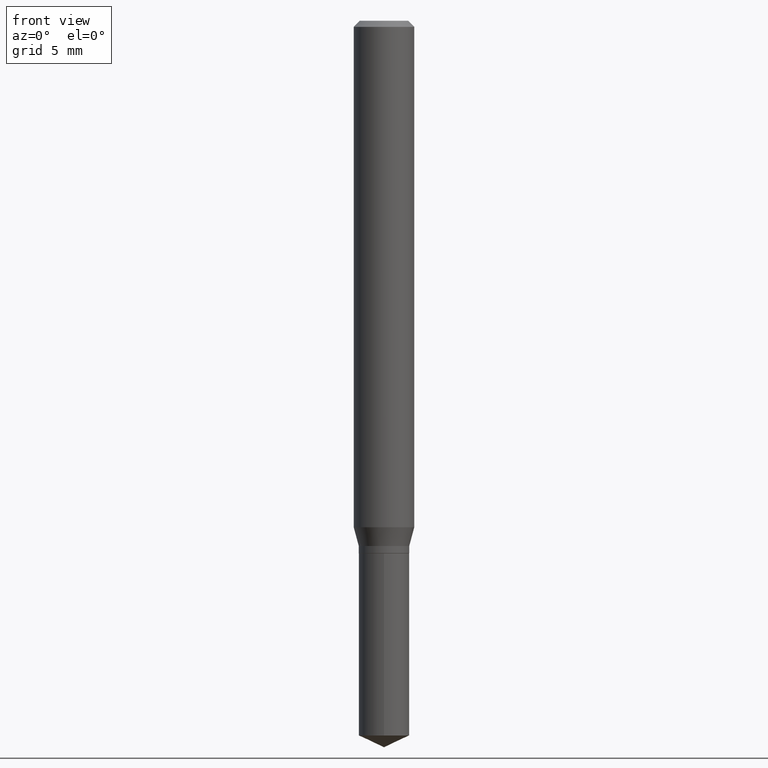
[diagram: clean part render]
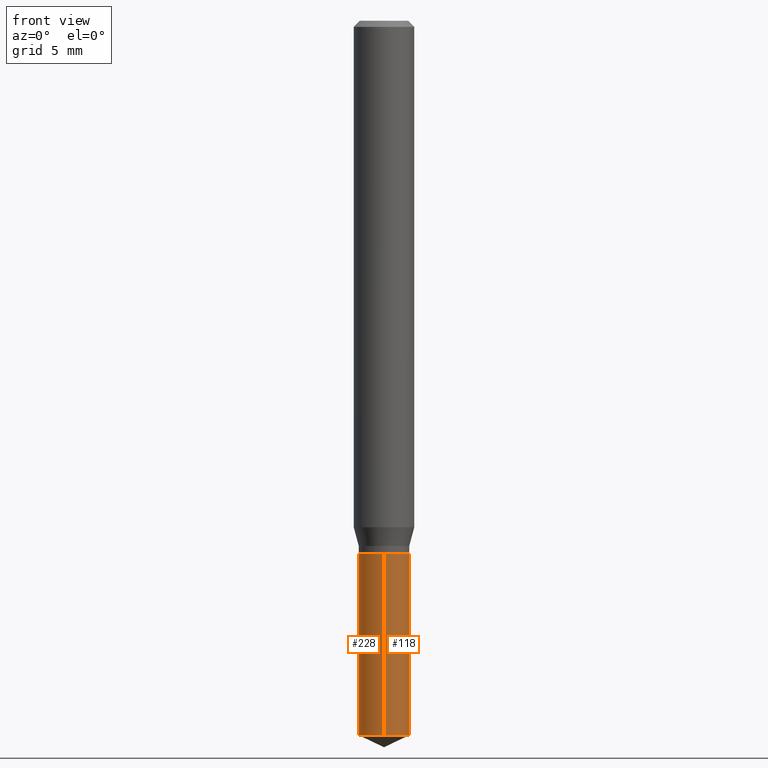
[diagram: same view with one multi-face feature highlighted, each face labeled with its STEP entity id]
A machine part, front view. The highlighted faces form ONE feature: a constant-radius fillet chain: 2 tangent blend faces with common blend radius 1.3246 mm. The faces share edges in the B-rep.
Their STEP definitions:
[1] entity #118 (Cylinder):
#44 = CARTESIAN_POINT ( 'NONE',  ( -3.641615036413025703E-16, -0.05215000000000513669, -1.475682055627216993 ) ) ;
#48 = AXIS2_PLACEMENT_3D ( 'NONE', #150, #476, #297 ) ;
#65 = FACE_OUTER_BOUND ( 'NONE', #429, .T. ) ;
#75 = DIRECTION ( 'NONE',  ( -6.982962677686266711E-15, -1.000000000000000000, 5.238442940871069917E-15 ) ) ;
#77 = CARTESIAN_POINT ( 'NONE',  ( 3.608708469328962837E-29, -5.152353543440113099E-15, -1.475682055627217215 ) ) ;
#86 = CARTESIAN_POINT ( 'NONE',  ( 3.705480366989283509E-16, 0.05214999999999615776, -1.100000000000000089 ) ) ;
#98 = VECTOR ( 'NONE', #408, 39.37007874015748143 ) ;
#116 = CARTESIAN_POINT ( 'NONE',  ( 2.690015686803650369E-29, -3.840629472727460101E-15, -1.100000000000000089 ) ) ;
#117 = DIRECTION ( 'NONE',  ( -2.445399690415121530E-29, 3.491580316559632610E-15, 1.000000000000000000 ) ) ;
#118 = ADVANCED_FACE ( 'NONE', ( #65 ), #441, .T. ) ;
#120 = CIRCLE ( 'NONE', #308, 0.05215000000000000191 ) ;
#123 = EDGE_CURVE ( 'NONE', #422, #307, #179, .T. ) ;
#139 = CARTESIAN_POINT ( 'NONE',  ( 3.705480366989190325E-16, 0.05214999999999615776, -1.100000000000000089 ) ) ;
#150 = CARTESIAN_POINT ( 'NONE',  ( 2.690015686803650369E-29, -3.840629472727460101E-15, -1.100000000000000089 ) ) ;
#156 = VECTOR ( 'NONE', #234, 39.37007874015748143 ) ;
#160 = DIRECTION ( 'NONE',  ( -2.445399690415121530E-29, 3.491580316559632610E-15, 1.000000000000000000 ) ) ;
#179 = LINE ( 'NONE', #139, #98 ) ;
#192 = DIRECTION ( 'NONE',  ( -6.982962677686266711E-15, -1.000000000000000000, 2.619221470435534958E-15 ) ) ;
#207 = EDGE_CURVE ( 'NONE', #299, #307, #120, .T. ) ;
#227 = CARTESIAN_POINT ( 'NONE',  ( -3.641615036413119380E-16, -0.05215000000000383912, -1.099999999999999867 ) ) ;
#232 = EDGE_CURVE ( 'NONE', #249, #422, #256, .T. ) ;
#234 = DIRECTION ( 'NONE',  ( -2.445399690415121810E-29, 3.491580316559632610E-15, 1.000000000000000000 ) ) ;
#249 = VERTEX_POINT ( 'NONE', #44 ) ;
#256 = CIRCLE ( 'NONE', #412, 0.05215000000000000191 ) ;
#265 = LINE ( 'NONE', #227, #156 ) ;
#286 = ORIENTED_EDGE ( 'NONE', *, *, #207, .F. ) ;
#297 = DIRECTION ( 'NONE',  ( -6.982962677686266711E-15, -1.000000000000000000, 2.619221470435534958E-15 ) ) ;
#299 = VERTEX_POINT ( 'NONE', #381 ) ;
#307 = VERTEX_POINT ( 'NONE', #86 ) ;
#308 = AXIS2_PLACEMENT_3D ( 'NONE', #116, #117, #192 ) ;
#354 = EDGE_CURVE ( 'NONE', #249, #299, #265, .T. ) ;
#355 = CARTESIAN_POINT ( 'NONE',  ( 3.705480366989282030E-16, 0.05214999999999482549, -1.475682055627217437 ) ) ;
#380 = ORIENTED_EDGE ( 'NONE', *, *, #232, .T. ) ;
#381 = CARTESIAN_POINT ( 'NONE',  ( -3.641615036413119380E-16, -0.05215000000000383912, -1.099999999999999867 ) ) ;
#408 = DIRECTION ( 'NONE',  ( -2.445399690415121810E-29, 3.491580316559632610E-15, 1.000000000000000000 ) ) ;
#412 = AXIS2_PLACEMENT_3D ( 'NONE', #77, #160, #75 ) ;
#422 = VERTEX_POINT ( 'NONE', #355 ) ;
#429 = EDGE_LOOP ( 'NONE', ( #380, #449, #286, #462 ) ) ;
#441 = CYLINDRICAL_SURFACE ( 'NONE', #48, 0.05215000000000000191 ) ;
#449 = ORIENTED_EDGE ( 'NONE', *, *, #123, .T. ) ;
#462 = ORIENTED_EDGE ( 'NONE', *, *, #354, .F. ) ;
#476 = DIRECTION ( 'NONE',  ( -2.445399690415121530E-29, 3.491580316559632610E-15, 1.000000000000000000 ) ) ;
[2] entity #228 (Cylinder):
#3 = AXIS2_PLACEMENT_3D ( 'NONE', #196, #379, #6 ) ;
#6 = DIRECTION ( 'NONE',  ( -6.982962677686266711E-15, -1.000000000000000000, 2.619221470435534958E-15 ) ) ;
#7 = ORIENTED_EDGE ( 'NONE', *, *, #354, .T. ) ;
#8 = CARTESIAN_POINT ( 'NONE',  ( 3.608708469328962837E-29, -5.152353543440113099E-15, -1.475682055627217215 ) ) ;
#12 = ORIENTED_EDGE ( 'NONE', *, *, #273, .T. ) ;
#14 = EDGE_CURVE ( 'NONE', #307, #299, #233, .T. ) ;
#44 = CARTESIAN_POINT ( 'NONE',  ( -3.641615036413025703E-16, -0.05215000000000513669, -1.475682055627216993 ) ) ;
#86 = CARTESIAN_POINT ( 'NONE',  ( 3.705480366989283509E-16, 0.05214999999999615776, -1.100000000000000089 ) ) ;
#98 = VECTOR ( 'NONE', #408, 39.37007874015748143 ) ;
#123 = EDGE_CURVE ( 'NONE', #422, #307, #179, .T. ) ;
#133 = EDGE_LOOP ( 'NONE', ( #427, #12, #7, #323 ) ) ;
#139 = CARTESIAN_POINT ( 'NONE',  ( 3.705480366989190325E-16, 0.05214999999999615776, -1.100000000000000089 ) ) ;
#156 = VECTOR ( 'NONE', #234, 39.37007874015748143 ) ;
#179 = LINE ( 'NONE', #139, #98 ) ;
#181 = AXIS2_PLACEMENT_3D ( 'NONE', #8, #453, #197 ) ;
#196 = CARTESIAN_POINT ( 'NONE',  ( 2.690015686803650369E-29, -3.840629472727460101E-15, -1.100000000000000089 ) ) ;
#197 = DIRECTION ( 'NONE',  ( -6.982962677686266711E-15, -1.000000000000000000, 5.238442940871069917E-15 ) ) ;
#206 = DIRECTION ( 'NONE',  ( -6.982962677686266711E-15, -1.000000000000000000, 2.619221470435534958E-15 ) ) ;
#227 = CARTESIAN_POINT ( 'NONE',  ( -3.641615036413119380E-16, -0.05215000000000383912, -1.099999999999999867 ) ) ;
#228 = ADVANCED_FACE ( 'NONE', ( #415 ), #310, .T. ) ;
#233 = CIRCLE ( 'NONE', #455, 0.05215000000000000191 ) ;
#234 = DIRECTION ( 'NONE',  ( -2.445399690415121810E-29, 3.491580316559632610E-15, 1.000000000000000000 ) ) ;
#249 = VERTEX_POINT ( 'NONE', #44 ) ;
#265 = LINE ( 'NONE', #227, #156 ) ;
#273 = EDGE_CURVE ( 'NONE', #422, #249, #277, .T. ) ;
#277 = CIRCLE ( 'NONE', #181, 0.05215000000000000191 ) ;
#299 = VERTEX_POINT ( 'NONE', #381 ) ;
#307 = VERTEX_POINT ( 'NONE', #86 ) ;
#310 = CYLINDRICAL_SURFACE ( 'NONE', #3, 0.05215000000000000191 ) ;
#323 = ORIENTED_EDGE ( 'NONE', *, *, #14, .F. ) ;
#354 = EDGE_CURVE ( 'NONE', #249, #299, #265, .T. ) ;
#355 = CARTESIAN_POINT ( 'NONE',  ( 3.705480366989282030E-16, 0.05214999999999482549, -1.475682055627217437 ) ) ;
#379 = DIRECTION ( 'NONE',  ( -2.445399690415121530E-29, 3.491580316559632610E-15, 1.000000000000000000 ) ) ;
#381 = CARTESIAN_POINT ( 'NONE',  ( -3.641615036413119380E-16, -0.05215000000000383912, -1.099999999999999867 ) ) ;
#408 = DIRECTION ( 'NONE',  ( -2.445399690415121810E-29, 3.491580316559632610E-15, 1.000000000000000000 ) ) ;
#415 = FACE_OUTER_BOUND ( 'NONE', #133, .T. ) ;
#422 = VERTEX_POINT ( 'NONE', #355 ) ;
#423 = DIRECTION ( 'NONE',  ( -2.445399690415121530E-29, 3.491580316559632610E-15, 1.000000000000000000 ) ) ;
#427 = ORIENTED_EDGE ( 'NONE', *, *, #123, .F. ) ;
#453 = DIRECTION ( 'NONE',  ( -2.445399690415121530E-29, 3.491580316559632610E-15, 1.000000000000000000 ) ) ;
#455 = AXIS2_PLACEMENT_3D ( 'NONE', #473, #423, #206 ) ;
#473 = CARTESIAN_POINT ( 'NONE',  ( 2.690015686803650369E-29, -3.840629472727460101E-15, -1.100000000000000089 ) ) ;